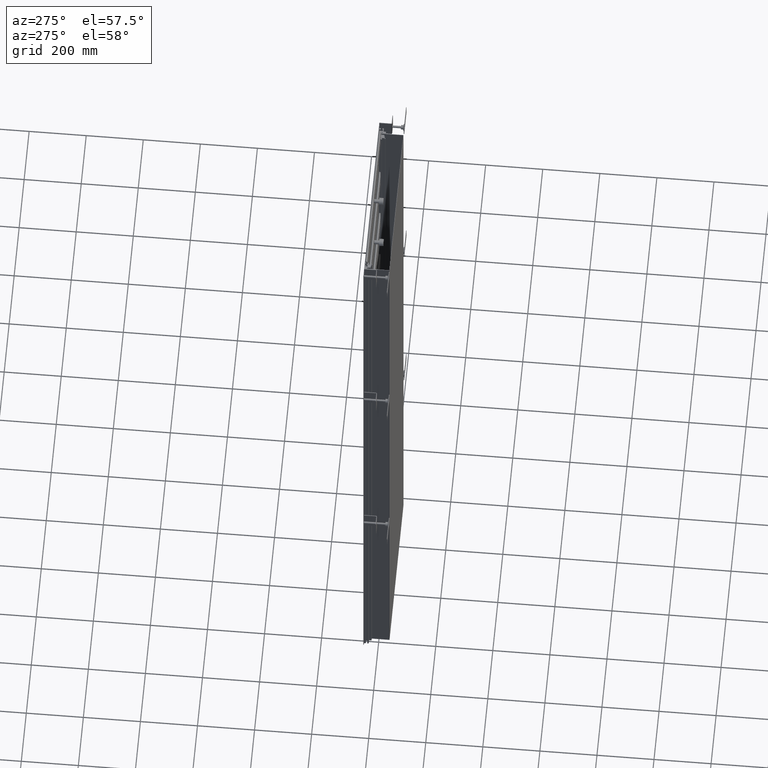
[diagram: clean part render]
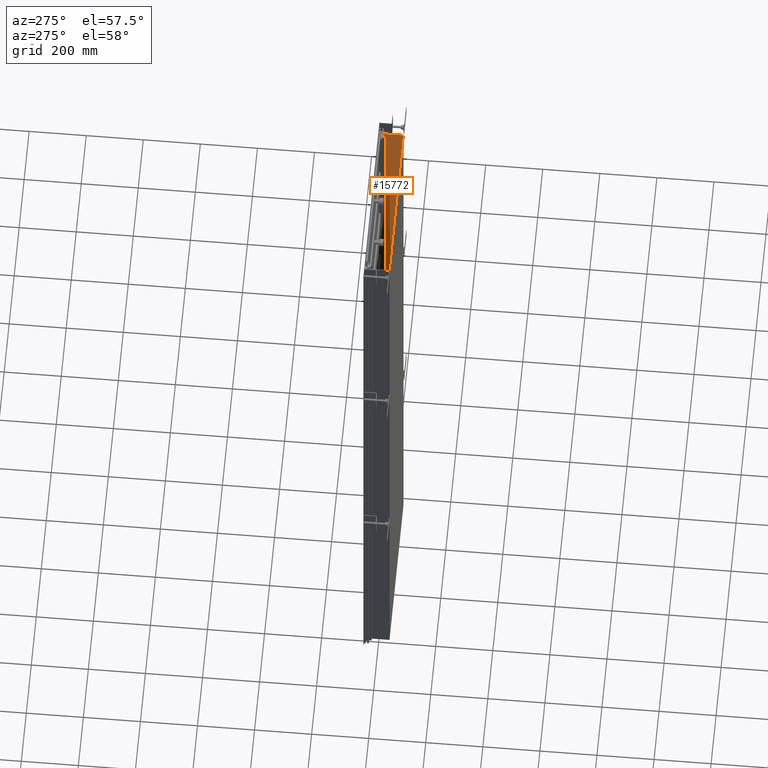
[diagram: same view with one face highlighted and labeled with its STEP entity id]
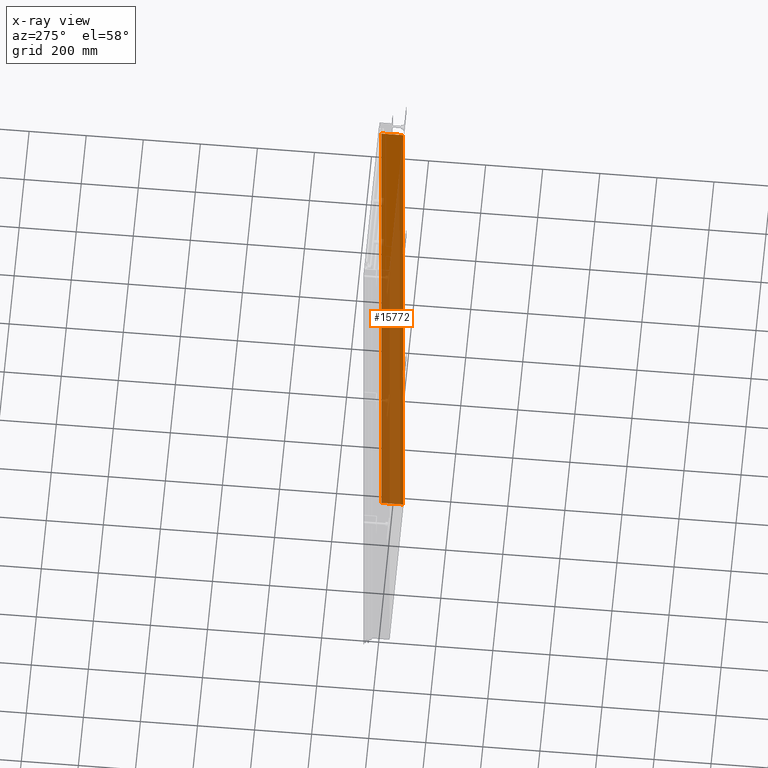
[diagram: x-ray of the same camera — body ghosted, the highlighted face saturated]
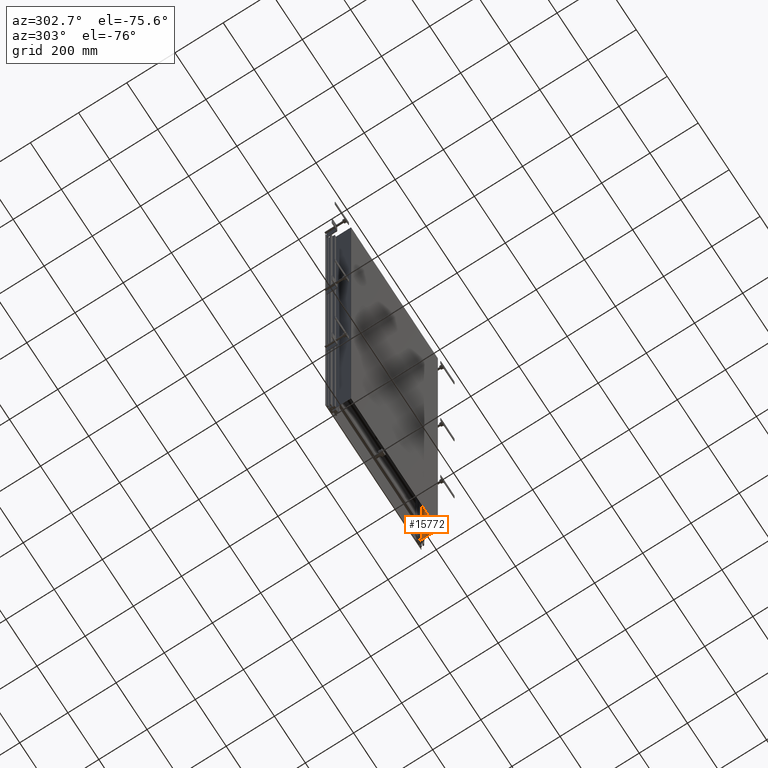
[diagram: same view with one face highlighted and labeled with its STEP entity id]
A machine part, auxiliary view. The second image highlights one B-rep face of the part: STEP entity #15772.
The next image is the same camera in x-ray: the body ghosted, the highlighted face saturated — about 62% of this face is hidden behind the body in this view.
A second angle (auxiliary view) of the same face is appended — the face is thin or edge-on in the first view.
In plain terms, the highlighted planar face has unit normal (1, 0, 0).
Its self-contained STEP definition (entity closure, byte-faithful):
#15130=DIRECTION('',(-1.E0,0.E0,0.E0));
#15131=VECTOR('',#15130,2.4E3);
#15132=CARTESIAN_POINT('',(1.2E3,2.E0,-2.805E2));
#15133=LINE('',#15132,#15131);
#15148=DIRECTION('',(0.E0,-1.E0,0.E0));
#15149=VECTOR('',#15148,7.6E1);
#15150=CARTESIAN_POINT('',(1.2E3,7.8E1,-2.805E2));
#15151=LINE('',#15150,#15149);
#15152=DIRECTION('',(0.E0,1.E0,0.E0));
#15153=VECTOR('',#15152,7.6E1);
#15154=CARTESIAN_POINT('',(-1.2E3,2.E0,-2.805E2));
#15155=LINE('',#15154,#15153);
#15165=DIRECTION('',(-1.E0,0.E0,0.E0));
#15166=VECTOR('',#15165,2.4E3);
#15167=CARTESIAN_POINT('',(1.2E3,7.8E1,-2.805E2));
#15168=LINE('',#15167,#15166);
#15214=CARTESIAN_POINT('',(1.2E3,2.E0,-2.805E2));
#15215=CARTESIAN_POINT('',(-1.2E3,2.E0,-2.805E2));
#15216=VERTEX_POINT('',#15214);
#15217=VERTEX_POINT('',#15215);
#15246=CARTESIAN_POINT('',(-1.2E3,7.8E1,-2.805E2));
#15247=VERTEX_POINT('',#15246);
#15248=CARTESIAN_POINT('',(1.2E3,7.8E1,-2.805E2));
#15249=VERTEX_POINT('',#15248);
#15760=CARTESIAN_POINT('',(6.2976E2,0.E0,-2.805E2));
#15761=DIRECTION('',(0.E0,0.E0,-1.E0));
#15762=DIRECTION('',(-1.E0,0.E0,0.E0));
#15763=AXIS2_PLACEMENT_3D('',#15760,#15761,#15762);
#15764=PLANE('',#15763);
#15765=ORIENTED_EDGE('',*,*,#15464,.T.);
#15766=ORIENTED_EDGE('',*,*,#15752,.T.);
#15767=ORIENTED_EDGE('',*,*,#15348,.T.);
#15769=ORIENTED_EDGE('',*,*,#15768,.F.);
#15770=EDGE_LOOP('',(#15765,#15766,#15767,#15769));
#15771=FACE_OUTER_BOUND('',#15770,.F.);
#15348=EDGE_CURVE('',#15217,#15247,#15155,.T.);
#15464=EDGE_CURVE('',#15249,#15216,#15151,.T.);
#15752=EDGE_CURVE('',#15216,#15217,#15133,.T.);
#15768=EDGE_CURVE('',#15249,#15247,#15168,.T.);
#15772=ADVANCED_FACE('',(#15771),#15764,.F.);